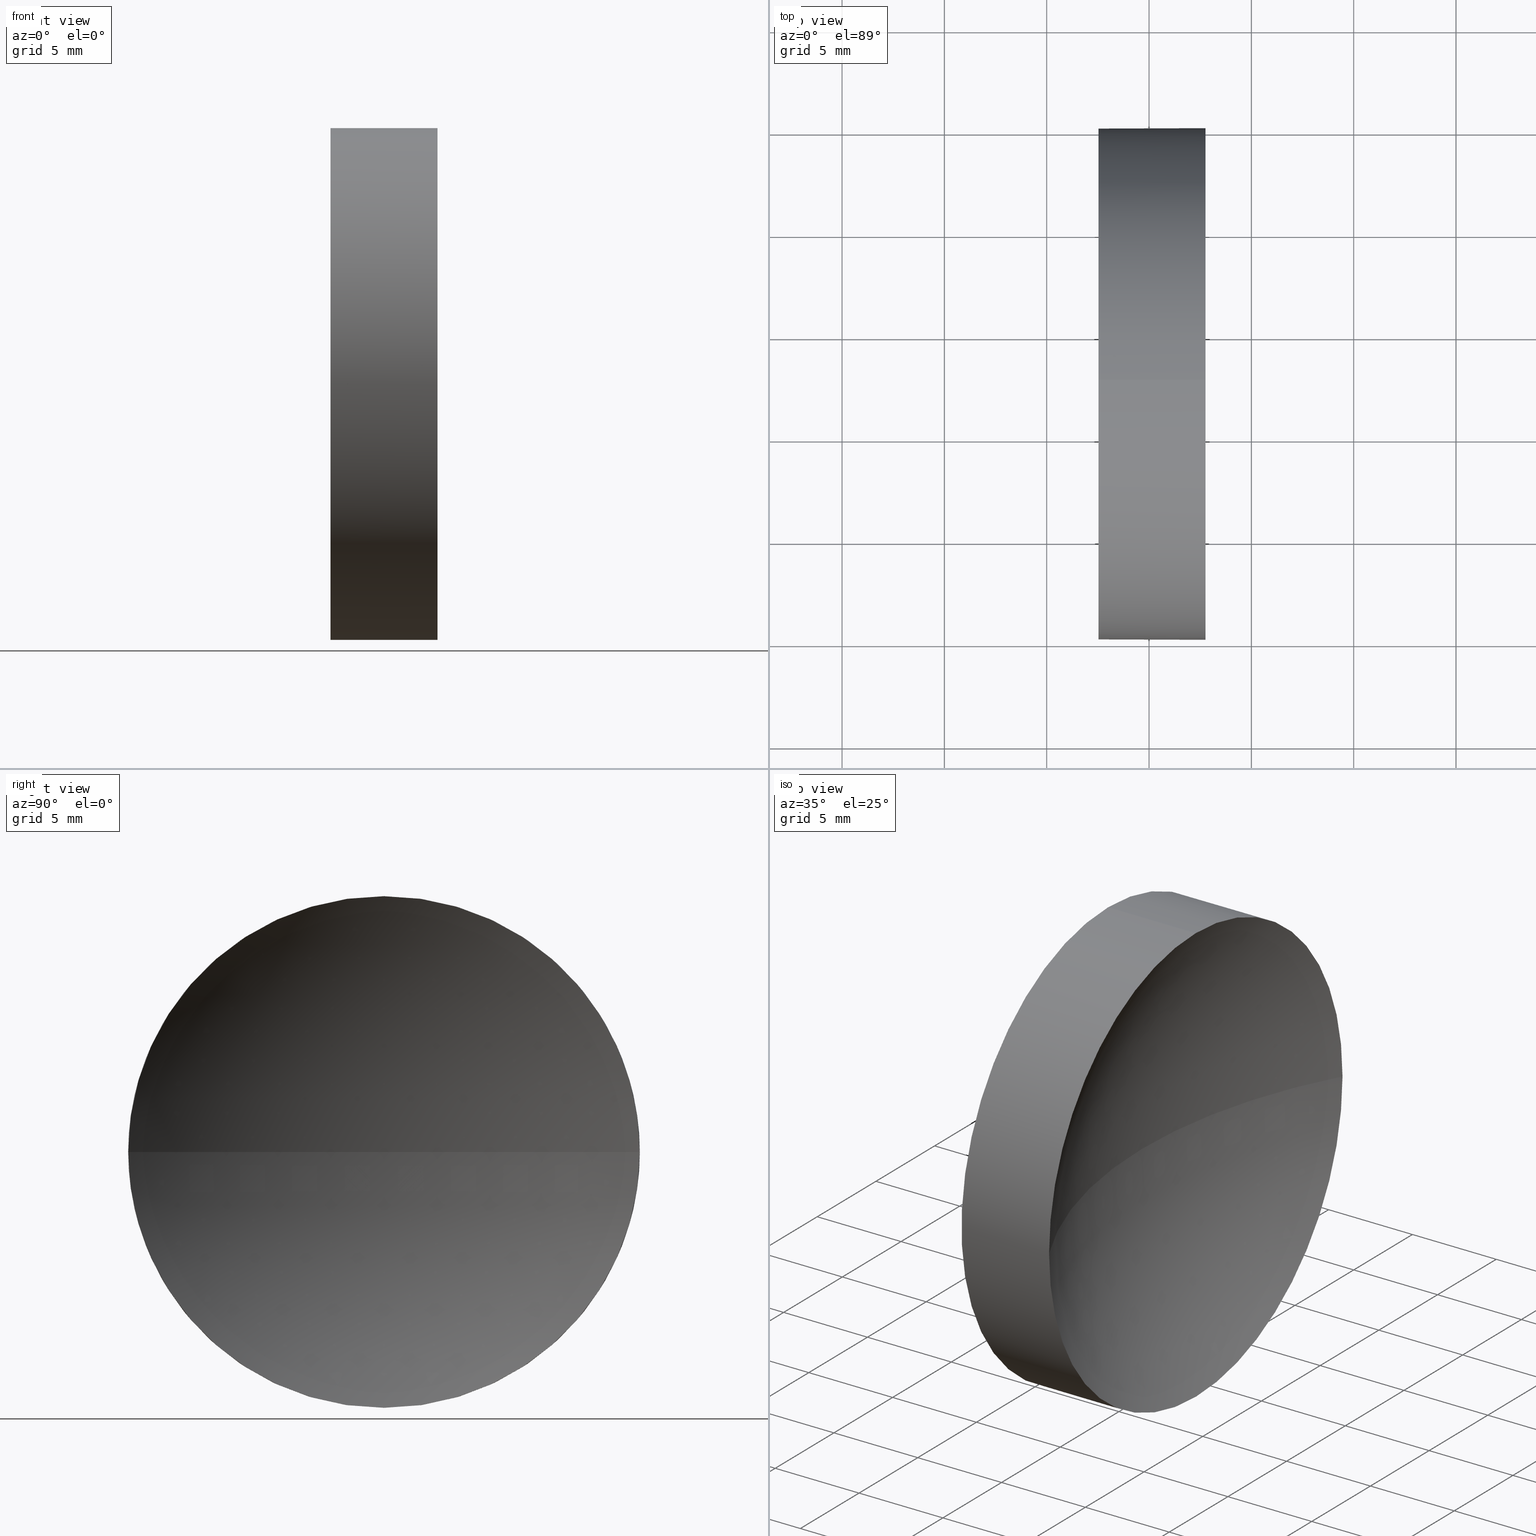
[diagram: canonical four-view strip — front | top / right | iso, engineering-drawing reading convention]
A machine part, canonical four-view strip (front | top / right | iso — engineering-drawing reading convention). The complete STEP part file that produces these views, byte-faithful:
ISO-10303-21;
HEADER;
FILE_DESCRIPTION (( 'STEP AP214' ),
    '1' );
FILE_NAME ('120032.STEP',
    '2019-06-17T02:45:28',
    ( '' ),
    ( '' ),
    'SwSTEP 2.0',
    'SolidWorks 2016',
    '' );
FILE_SCHEMA (( 'AUTOMOTIVE_DESIGN' ));
ENDSEC;

DATA;
#1 = CARTESIAN_POINT ( 'NONE',  ( 57.53233705252611700, 32.61076812922678400, 0.0000000000000000000 ) ) ;
#2 =( NAMED_UNIT ( * ) PLANE_ANGLE_UNIT ( ) SI_UNIT ( $, .RADIAN. ) );
#3 = CARTESIAN_POINT ( 'NONE',  ( 0.0000000000000000000, 0.0000000000000000000, 0.0000000000000000000 ) ) ;
#4 = APPLICATION_PROTOCOL_DEFINITION ( 'draft international standard', 'automotive_design', 1998, #56 ) ;
#5 = ORIENTED_EDGE ( 'NONE', *, *, #10, .T. ) ;
#6 = ADVANCED_FACE ( 'NONE', ( #152 ), #43, .T. ) ;
#7 = MECHANICAL_DESIGN_GEOMETRIC_PRESENTATION_REPRESENTATION (  '', ( #142 ), #78 ) ;
#8 = ORIENTED_EDGE ( 'NONE', *, *, #40, .T. ) ;
#9 = AXIS2_PLACEMENT_3D ( 'NONE', #162, #72, #178 ) ;
#10 = EDGE_CURVE ( 'NONE', #20, #60, #74, .T. ) ;
#11 = PRESENTATION_STYLE_ASSIGNMENT (( #163 ) ) ;
#12 = CLOSED_SHELL ( 'NONE', ( #30, #21, #123, #6, #18 ) ) ;
#13 = DIRECTION ( 'NONE',  ( 0.0000000000000000000, 0.0000000000000000000, 1.000000000000000000 ) ) ;
#14 = CARTESIAN_POINT ( 'NONE',  ( 56.10091507999716500, 32.61076812922678400, 0.0000000000000000000 ) ) ;
#15 = CARTESIAN_POINT ( 'NONE',  ( 62.75695290809913000, 45.11076812922678400, 1.530808498934191100E-015 ) ) ;
#16 = DIRECTION ( 'NONE',  ( 0.0000000000000000000, 0.0000000000000000000, 1.000000000000000000 ) ) ;
#17 = VERTEX_POINT ( 'NONE', #65 ) ;
#18 = ADVANCED_FACE ( 'NONE', ( #128 ), #99, .F. ) ;
#19 = EDGE_CURVE ( 'NONE', #60, #164, #88, .T. ) ;
#20 = VERTEX_POINT ( 'NONE', #182 ) ;
#21 = ADVANCED_FACE ( 'NONE', ( #32 ), #45, .F. ) ;
#22 = FACE_OUTER_BOUND ( 'NONE', #42, .T. ) ;
#23 = ORIENTED_EDGE ( 'NONE', *, *, #89, .F. ) ;
#24 = DIRECTION ( 'NONE',  ( 0.0000000000000000000, 0.0000000000000000000, -1.000000000000000000 ) ) ;
#25 = EDGE_CURVE ( 'NONE', #60, #95, #116, .T. ) ;
#26 = ORIENTED_EDGE ( 'NONE', *, *, #19, .T. ) ;
#27 = FILL_AREA_STYLE_COLOUR ( '', #107 ) ;
#28 = DIRECTION ( 'NONE',  ( 0.0000000000000000000, 0.0000000000000000000, 1.000000000000000000 ) ) ;
#29 = CARTESIAN_POINT ( 'NONE',  ( 57.53233705252611700, 32.61076812922678400, 12.49999999999999600 ) ) ;
#30 = ADVANCED_FACE ( 'NONE', ( #22 ), #80, .T. ) ;
#31 = DIRECTION ( 'NONE',  ( -1.000000000000000000, -0.0000000000000000000, -0.0000000000000000000 ) ) ;
#32 = FACE_OUTER_BOUND ( 'NONE', #93, .T. ) ;
#33 = EDGE_LOOP ( 'NONE', ( #75, #101 ) ) ;
#34 = FILL_AREA_STYLE ('',( #27 ) ) ;
#35 = CARTESIAN_POINT ( 'NONE',  ( 62.75695290809913000, 32.61076812922678400, 0.0000000000000000000 ) ) ;
#36 = DIRECTION ( 'NONE',  ( 0.0000000000000000000, 0.0000000000000000000, 1.000000000000000000 ) ) ;
#37 = DIRECTION ( 'NONE',  ( -1.000000000000000000, -0.0000000000000000000, -0.0000000000000000000 ) ) ;
#38 = DIRECTION ( 'NONE',  ( 0.0000000000000000000, 0.0000000000000000000, 1.000000000000000000 ) ) ;
#39 =( NAMED_UNIT ( * ) SI_UNIT ( $, .STERADIAN. ) SOLID_ANGLE_UNIT ( ) );
#40 = EDGE_CURVE ( 'NONE', #95, #17, #185, .T. ) ;
#41 =( GEOMETRIC_REPRESENTATION_CONTEXT ( 3 ) GLOBAL_UNCERTAINTY_ASSIGNED_CONTEXT ( ( #67 ) ) GLOBAL_UNIT_ASSIGNED_CONTEXT ( ( #73, #90, #39 ) ) REPRESENTATION_CONTEXT ( 'NONE', 'WORKASPACE' ) );
#42 = EDGE_LOOP ( 'NONE', ( #180, #97, #91, #111, #143 ) ) ;
#43 = CYLINDRICAL_SURFACE ( 'NONE', #158, 12.49999999999999600 ) ;
#44 = ORIENTED_EDGE ( 'NONE', *, *, #79, .F. ) ;
#45 = SPHERICAL_SURFACE ( 'NONE', #127, 25.84000000000000300 ) ;
#46 = EDGE_LOOP ( 'NONE', ( #23, #96, #5, #26, #44 ) ) ;
#47 = DIRECTION ( 'NONE',  ( 0.0000000000000000000, 0.0000000000000000000, 1.000000000000000000 ) ) ;
#48 = PRESENTATION_LAYER_ASSIGNMENT (  '', '', ( #172 ) ) ;
#49 = ORIENTED_EDGE ( 'NONE', *, *, #161, .F. ) ;
#50 = CARTESIAN_POINT ( 'NONE',  ( 62.75695290809913000, 32.61076812922678400, -12.49999999999999600 ) ) ;
#51 = CARTESIAN_POINT ( 'NONE',  ( 62.75695290809913000, 32.61076812922678400, 12.49999999999999600 ) ) ;
#52 = DIRECTION ( 'NONE',  ( 0.0000000000000000000, -1.000000000000000000, 0.0000000000000000000 ) ) ;
#53 = PRODUCT ( '120032', '120032', '', ( #150 ) ) ;
#54 = DIRECTION ( 'NONE',  ( 0.0000000000000000000, 0.0000000000000000000, 1.000000000000000000 ) ) ;
#55 = VERTEX_POINT ( 'NONE', #117 ) ;
#56 = APPLICATION_CONTEXT ( 'automotive_design' ) ;
#57 = ORIENTED_EDGE ( 'NONE', *, *, #40, .F. ) ;
#58 = MECHANICAL_DESIGN_GEOMETRIC_PRESENTATION_REPRESENTATION (  '', ( #172 ), #181 ) ;
#59 = ORIENTED_EDGE ( 'NONE', *, *, #161, .T. ) ;
#60 = VERTEX_POINT ( 'NONE', #51 ) ;
#61 = PRODUCT_DEFINITION_SHAPE ( 'NONE', 'NONE',  #155 ) ;
#62 = DIRECTION ( 'NONE',  ( -1.000000000000000000, -0.0000000000000000000, -0.0000000000000000000 ) ) ;
#63 = COLOUR_RGB ( '',1.000000000000000000, 1.000000000000000000, 1.000000000000000000 ) ;
#64 = MANIFOLD_SOLID_BREP ( '��ת1', #12 ) ;
#65 = CARTESIAN_POINT ( 'NONE',  ( 59.53233705252612400, 32.61076812922678400, 0.0000000000000000000 ) ) ;
#66 = CIRCLE ( 'NONE', #9, 25.84000000000000300 ) ;
#67 = UNCERTAINTY_MEASURE_WITH_UNIT (LENGTH_MEASURE( 1.000000000000000100E-005 ), #73, 'distance_accuracy_value', 'NONE');
#68 = DIRECTION ( 'NONE',  ( -1.000000000000000000, -0.0000000000000000000, -0.0000000000000000000 ) ) ;
#69 = CIRCLE ( 'NONE', #103, 12.49999999999999600 ) ;
#70 = DIRECTION ( 'NONE',  ( 0.0000000000000000000, -1.000000000000000000, -1.224646799147353200E-016 ) ) ;
#71 = FILL_AREA_STYLE_COLOUR ( '', #63 ) ;
#72 = DIRECTION ( 'NONE',  ( 0.0000000000000000000, 0.0000000000000000000, -1.000000000000000000 ) ) ;
#73 =( LENGTH_UNIT ( ) NAMED_UNIT ( * ) SI_UNIT ( .MILLI., .METRE. ) );
#74 = CIRCLE ( 'NONE', #146, 12.49999999999999600 ) ;
#75 = ORIENTED_EDGE ( 'NONE', *, *, #109, .T. ) ;
#76 = AXIS2_PLACEMENT_3D ( 'NONE', #1, #83, #102 ) ;
#77 = SURFACE_STYLE_FILL_AREA ( #106 ) ;
#78 =( GEOMETRIC_REPRESENTATION_CONTEXT ( 3 ) GLOBAL_UNCERTAINTY_ASSIGNED_CONTEXT ( ( #131 ) ) GLOBAL_UNIT_ASSIGNED_CONTEXT ( ( #177, #2, #149 ) ) REPRESENTATION_CONTEXT ( 'NONE', 'WORKASPACE' ) );
#79 = EDGE_CURVE ( 'NONE', #55, #164, #104, .T. ) ;
#80 = CYLINDRICAL_SURFACE ( 'NONE', #124, 12.49999999999999600 ) ;
#81 = SURFACE_SIDE_STYLE ('',( #157 ) ) ;
#82 = AXIS2_PLACEMENT_3D ( 'NONE', #121, #85, #120 ) ;
#83 = DIRECTION ( 'NONE',  ( -1.000000000000000000, -0.0000000000000000000, -0.0000000000000000000 ) ) ;
#84 = SURFACE_STYLE_USAGE ( .BOTH. , #81 ) ;
#85 = DIRECTION ( 'NONE',  ( -1.000000000000000000, -0.0000000000000000000, -0.0000000000000000000 ) ) ;
#86 = DIRECTION ( 'NONE',  ( 0.0000000000000000000, 0.0000000000000000000, 1.000000000000000000 ) ) ;
#87 = CARTESIAN_POINT ( 'NONE',  ( 62.75695290809913000, 32.61076812922678400, 0.0000000000000000000 ) ) ;
#88 = LINE ( 'NONE', #174, #153 ) ;
#89 = EDGE_CURVE ( 'NONE', #108, #55, #179, .T. ) ;
#90 =( NAMED_UNIT ( * ) PLANE_ANGLE_UNIT ( ) SI_UNIT ( $, .RADIAN. ) );
#91 = ORIENTED_EDGE ( 'NONE', *, *, #109, .F. ) ;
#92 = SURFACE_SIDE_STYLE ('',( #77 ) ) ;
#93 = EDGE_LOOP ( 'NONE', ( #167, #8, #49, #129 ) ) ;
#94 = AXIS2_PLACEMENT_3D ( 'NONE', #35, #68, #36 ) ;
#95 = VERTEX_POINT ( 'NONE', #15 ) ;
#96 = ORIENTED_EDGE ( 'NONE', *, *, #132, .T. ) ;
#97 = ORIENTED_EDGE ( 'NONE', *, *, #89, .T. ) ;
#98 = CARTESIAN_POINT ( 'NONE',  ( 56.10091507999716500, 32.61076812922678400, 0.0000000000000000000 ) ) ;
#99 = PLANE ( 'NONE',  #165 ) ;
#100 = DIRECTION ( 'NONE',  ( 0.0000000000000000000, 0.0000000000000000000, 1.000000000000000000 ) ) ;
#101 = ORIENTED_EDGE ( 'NONE', *, *, #79, .T. ) ;
#102 = DIRECTION ( 'NONE',  ( 0.0000000000000000000, 0.0000000000000000000, 1.000000000000000000 ) ) ;
#103 = AXIS2_PLACEMENT_3D ( 'NONE', #87, #31, #54 ) ;
#104 = CIRCLE ( 'NONE', #76, 12.49999999999999600 ) ;
#105 = DIRECTION ( 'NONE',  ( 1.000000000000000000, 0.0000000000000000000, 0.0000000000000000000 ) ) ;
#106 = FILL_AREA_STYLE ('',( #71 ) ) ;
#107 = COLOUR_RGB ( '',1.000000000000000000, 1.000000000000000000, 1.000000000000000000 ) ;
#108 = VERTEX_POINT ( 'NONE', #50 ) ;
#109 = EDGE_CURVE ( 'NONE', #164, #55, #141, .T. ) ;
#110 = PRESENTATION_STYLE_ASSIGNMENT (( #84 ) ) ;
#111 = ORIENTED_EDGE ( 'NONE', *, *, #19, .F. ) ;
#112 = PRODUCT_RELATED_PRODUCT_CATEGORY ( 'part', '', ( #53 ) ) ;
#113 = AXIS2_PLACEMENT_3D ( 'NONE', #148, #100, #176 ) ;
#114 = CARTESIAN_POINT ( 'NONE',  ( 57.53233705252611700, 32.61076812922678400, 0.0000000000000000000 ) ) ;
#115 = DIRECTION ( 'NONE',  ( 1.000000000000000000, 0.0000000000000000000, 0.0000000000000000000 ) ) ;
#116 = CIRCLE ( 'NONE', #94, 12.49999999999999600 ) ;
#117 = CARTESIAN_POINT ( 'NONE',  ( 57.53233705252611700, 32.61076812922678400, -12.49999999999999600 ) ) ;
#118 = CIRCLE ( 'NONE', #183, 12.49999999999999600 ) ;
#119 = ADVANCED_BREP_SHAPE_REPRESENTATION ( '120032', ( #64, #126 ), #41 ) ;
#120 = DIRECTION ( 'NONE',  ( 0.0000000000000000000, 0.0000000000000000000, 1.000000000000000000 ) ) ;
#121 = CARTESIAN_POINT ( 'NONE',  ( 57.53233705252611700, 32.61076812922678400, 0.0000000000000000000 ) ) ;
#122 = APPLICATION_CONTEXT ( 'automotive_design' ) ;
#123 = ADVANCED_FACE ( 'NONE', ( #151 ), #166, .F. ) ;
#124 = AXIS2_PLACEMENT_3D ( 'NONE', #14, #133, #86 ) ;
#125 = CARTESIAN_POINT ( 'NONE',  ( 62.75695290809913000, 32.61076812922678400, 0.0000000000000000000 ) ) ;
#126 = AXIS2_PLACEMENT_3D ( 'NONE', #3, #16, #105 ) ;
#127 = AXIS2_PLACEMENT_3D ( 'NONE', #186, #28, #52 ) ;
#128 = FACE_OUTER_BOUND ( 'NONE', #33, .T. ) ;
#129 = ORIENTED_EDGE ( 'NONE', *, *, #132, .F. ) ;
#130 = PRODUCT_DEFINITION_CONTEXT ( 'detailed design', #56, 'design' ) ;
#131 = UNCERTAINTY_MEASURE_WITH_UNIT (LENGTH_MEASURE( 1.000000000000000100E-005 ), #177, 'distance_accuracy_value', 'NONE');
#132 = EDGE_CURVE ( 'NONE', #108, #20, #69, .T. ) ;
#133 = DIRECTION ( 'NONE',  ( -1.000000000000000000, -0.0000000000000000000, -0.0000000000000000000 ) ) ;
#134 = APPLICATION_PROTOCOL_DEFINITION ( 'draft international standard', 'automotive_design', 1998, #122 ) ;
#135 = ORIENTED_EDGE ( 'NONE', *, *, #25, .F. ) ;
#136 = DIRECTION ( 'NONE',  ( -1.000000000000000000, -0.0000000000000000000, -0.0000000000000000000 ) ) ;
#137 = PRESENTATION_LAYER_ASSIGNMENT (  '', '', ( #142 ) ) ;
#138 = EDGE_CURVE ( 'NONE', #95, #108, #118, .T. ) ;
#139 = PRODUCT_DEFINITION_FORMATION_WITH_SPECIFIED_SOURCE ( '�κ�', '', #53, .NOT_KNOWN. ) ;
#140 = EDGE_LOOP ( 'NONE', ( #57, #135, #173, #59 ) ) ;
#141 = CIRCLE ( 'NONE', #82, 12.49999999999999600 ) ;
#142 = STYLED_ITEM ( 'NONE', ( #11 ), #119 ) ;
#143 = ORIENTED_EDGE ( 'NONE', *, *, #25, .T. ) ;
#144 = UNCERTAINTY_MEASURE_WITH_UNIT (LENGTH_MEASURE( 1.000000000000000100E-005 ), #145, 'distance_accuracy_value', 'NONE');
#145 =( LENGTH_UNIT ( ) NAMED_UNIT ( * ) SI_UNIT ( .MILLI., .METRE. ) );
#146 = AXIS2_PLACEMENT_3D ( 'NONE', #156, #184, #13 ) ;
#147 = CARTESIAN_POINT ( 'NONE',  ( 56.10091507999716500, 32.61076812922678400, -12.49999999999999600 ) ) ;
#148 = CARTESIAN_POINT ( 'NONE',  ( 85.37233705252613400, 32.61076812922678400, 0.0000000000000000000 ) ) ;
#149 =( NAMED_UNIT ( * ) SI_UNIT ( $, .STERADIAN. ) SOLID_ANGLE_UNIT ( ) );
#150 = PRODUCT_CONTEXT ( 'NONE', #122, 'mechanical' ) ;
#151 = FACE_OUTER_BOUND ( 'NONE', #140, .T. ) ;
#152 = FACE_OUTER_BOUND ( 'NONE', #46, .T. ) ;
#153 = VECTOR ( 'NONE', #37, 1000.000000000000000 ) ;
#154 = VECTOR ( 'NONE', #159, 1000.000000000000000 ) ;
#155 = PRODUCT_DEFINITION ( 'δ֪', '', #139, #130 ) ;
#156 = CARTESIAN_POINT ( 'NONE',  ( 62.75695290809913000, 32.61076812922678400, 0.0000000000000000000 ) ) ;
#157 = SURFACE_STYLE_FILL_AREA ( #34 ) ;
#158 = AXIS2_PLACEMENT_3D ( 'NONE', #98, #62, #47 ) ;
#159 = DIRECTION ( 'NONE',  ( -1.000000000000000000, -0.0000000000000000000, -0.0000000000000000000 ) ) ;
#160 =( NAMED_UNIT ( * ) SI_UNIT ( $, .STERADIAN. ) SOLID_ANGLE_UNIT ( ) );
#161 = EDGE_CURVE ( 'NONE', #20, #17, #66, .T. ) ;
#162 = CARTESIAN_POINT ( 'NONE',  ( 85.37233705252613400, 32.61076812922678400, 0.0000000000000000000 ) ) ;
#163 = SURFACE_STYLE_USAGE ( .BOTH. , #92 ) ;
#164 = VERTEX_POINT ( 'NONE', #29 ) ;
#165 = AXIS2_PLACEMENT_3D ( 'NONE', #114, #115, #24 ) ;
#166 = SPHERICAL_SURFACE ( 'NONE', #113, 25.84000000000000300 ) ;
#167 = ORIENTED_EDGE ( 'NONE', *, *, #138, .F. ) ;
#168 = AXIS2_PLACEMENT_3D ( 'NONE', #175, #170, #70 ) ;
#169 = SHAPE_DEFINITION_REPRESENTATION ( #61, #119 ) ;
#170 = DIRECTION ( 'NONE',  ( 0.0000000000000000000, -1.224646799147353200E-016, 1.000000000000000000 ) ) ;
#171 =( NAMED_UNIT ( * ) PLANE_ANGLE_UNIT ( ) SI_UNIT ( $, .RADIAN. ) );
#172 = STYLED_ITEM ( 'NONE', ( #110 ), #64 ) ;
#173 = ORIENTED_EDGE ( 'NONE', *, *, #10, .F. ) ;
#174 = CARTESIAN_POINT ( 'NONE',  ( 56.10091507999716500, 32.61076812922678400, 12.49999999999999600 ) ) ;
#175 = CARTESIAN_POINT ( 'NONE',  ( 85.37233705252613400, 32.61076812922678400, 0.0000000000000000000 ) ) ;
#176 = DIRECTION ( 'NONE',  ( 0.0000000000000000000, -1.000000000000000000, 0.0000000000000000000 ) ) ;
#177 =( LENGTH_UNIT ( ) NAMED_UNIT ( * ) SI_UNIT ( .MILLI., .METRE. ) );
#178 = DIRECTION ( 'NONE',  ( -1.000000000000000000, 0.0000000000000000000, 0.0000000000000000000 ) ) ;
#179 = LINE ( 'NONE', #147, #154 ) ;
#180 = ORIENTED_EDGE ( 'NONE', *, *, #138, .T. ) ;
#181 =( GEOMETRIC_REPRESENTATION_CONTEXT ( 3 ) GLOBAL_UNCERTAINTY_ASSIGNED_CONTEXT ( ( #144 ) ) GLOBAL_UNIT_ASSIGNED_CONTEXT ( ( #145, #171, #160 ) ) REPRESENTATION_CONTEXT ( 'NONE', 'WORKASPACE' ) );
#182 = CARTESIAN_POINT ( 'NONE',  ( 62.75695290809913000, 20.11076812922679100, 0.0000000000000000000 ) ) ;
#183 = AXIS2_PLACEMENT_3D ( 'NONE', #125, #136, #38 ) ;
#184 = DIRECTION ( 'NONE',  ( -1.000000000000000000, -0.0000000000000000000, -0.0000000000000000000 ) ) ;
#185 = CIRCLE ( 'NONE', #168, 25.84000000000000300 ) ;
#186 = CARTESIAN_POINT ( 'NONE',  ( 85.37233705252613400, 32.61076812922678400, 0.0000000000000000000 ) ) ;
ENDSEC;
END-ISO-10303-21;
